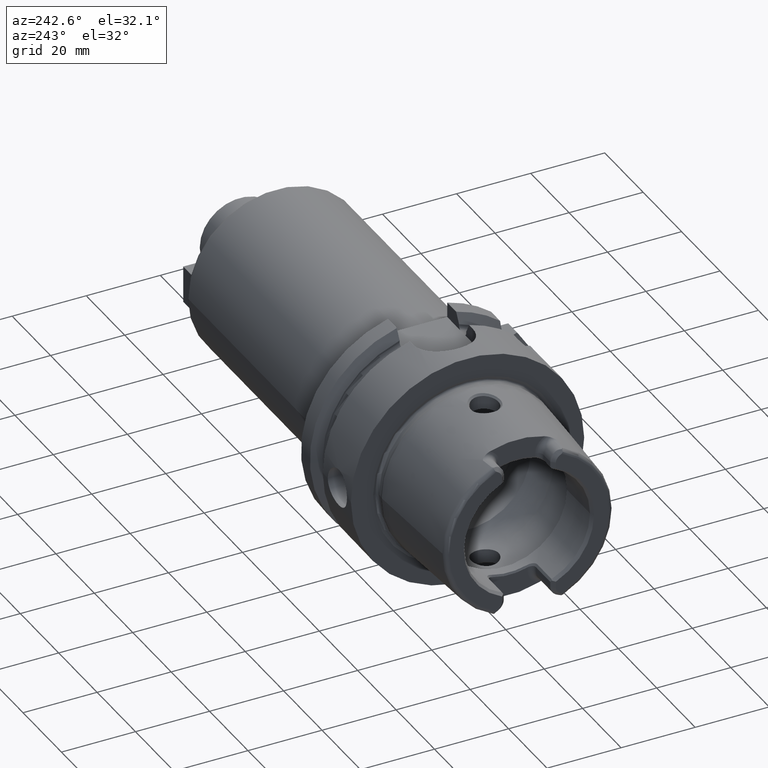
[diagram: clean part render]
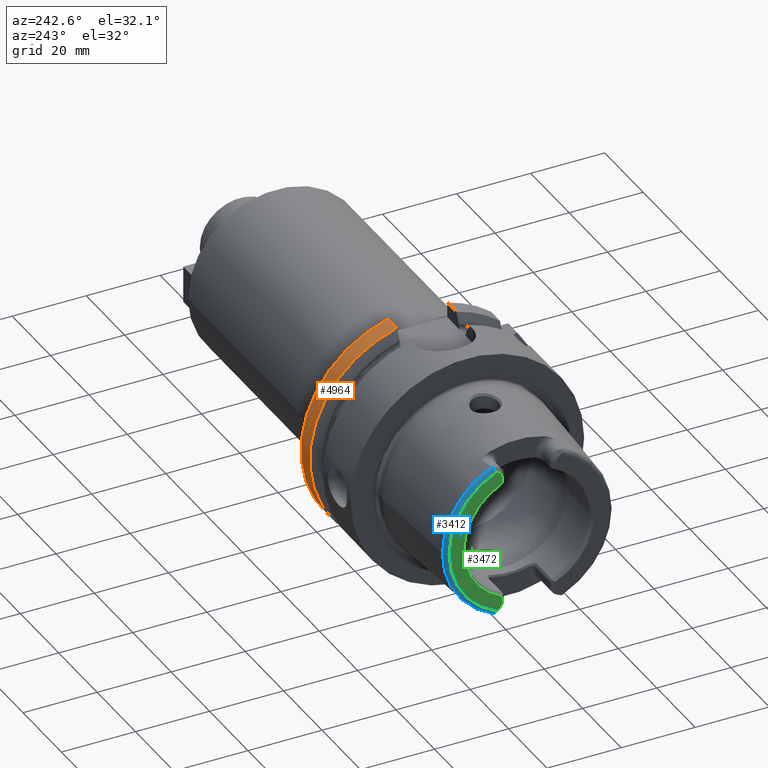
[diagram: same view with three faces highlighted in distinct colors, each labeled with its STEP entity id]
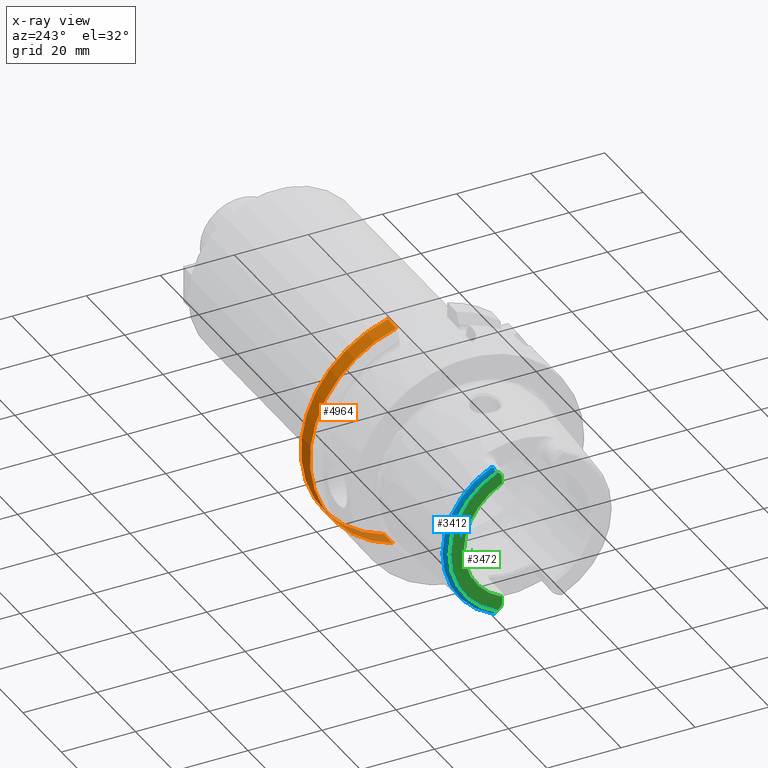
[diagram: x-ray of the same camera — body ghosted, the three highlighted faces saturated]
A machine part, auxiliary view with three faces highlighted in distinct colors.
The next image is the same camera in x-ray (body ghosted, the three faces saturated) — at least one of them is partly hidden behind the body in this view.
Their STEP definitions:

[orange] entity #4964 — the highlighted cylindrical surface (partial cylindrical patch) has radius 31.5 mm, axis along (1, 0, 0).
#1324=DIRECTION('',(-1.E0,0.E0,0.E0));
#1325=VECTOR('',#1324,4.622500925241E0);
#1326=CARTESIAN_POINT('',(2.6E1,9.0175E0,-3.018169467989E1));
#1327=LINE('',#1326,#1325);
#1557=DIRECTION('',(1.E0,0.E0,0.E0));
#1558=VECTOR('',#1557,4.622500925241E0);
#1559=CARTESIAN_POINT('',(2.137749907476E1,8.0175E0,3.046259499370E1));
#1560=LINE('',#1559,#1558);
#1565=CARTESIAN_POINT('',(2.6E1,0.E0,0.E0));
#1566=DIRECTION('',(1.E0,0.E0,0.E0));
#1567=DIRECTION('',(0.E0,2.862698412698E-1,-9.581490374568E-1));
#1568=AXIS2_PLACEMENT_3D('',#1565,#1566,#1567);
#1773=CARTESIAN_POINT('',(2.137749907476E1,9.0175E0,-3.018169467989E1));
#1780=CARTESIAN_POINT('',(2.137749907476E1,0.E0,0.E0));
#1781=DIRECTION('',(1.E0,0.E0,0.E0));
#1782=DIRECTION('',(0.E0,2.862698412698E-1,-9.581490374568E-1));
#1783=AXIS2_PLACEMENT_3D('',#1780,#1781,#1782);
#1790=CARTESIAN_POINT('',(2.137749907476E1,8.0175E0,3.046259499370E1));
#3124=VERTEX_POINT('',#1790);
#3153=VERTEX_POINT('',#1773);
#3155=CARTESIAN_POINT('',(2.6E1,9.0175E0,-3.018169467989E1));
#3156=CARTESIAN_POINT('',(2.6E1,8.0175E0,3.046259499370E1));
#3157=VERTEX_POINT('',#3155);
#3158=VERTEX_POINT('',#3156);
#4951=CARTESIAN_POINT('',(-3.49E1,0.E0,0.E0));
#4952=DIRECTION('',(1.E0,0.E0,0.E0));
#4953=DIRECTION('',(0.E0,-1.E0,0.E0));
#4954=AXIS2_PLACEMENT_3D('',#4951,#4952,#4953);
#4955=CYLINDRICAL_SURFACE('',#4954,3.15E1);
#4956=ORIENTED_EDGE('',*,*,#4665,.F.);
#4958=ORIENTED_EDGE('',*,*,#4957,.T.);
#4959=ORIENTED_EDGE('',*,*,#4922,.F.);
#4961=ORIENTED_EDGE('',*,*,#4960,.F.);
#4962=EDGE_LOOP('',(#4956,#4958,#4959,#4961));
#4963=FACE_OUTER_BOUND('',#4962,.F.);
#4964=ADVANCED_FACE('',(#4963),#4955,.T.);
#1569=CIRCLE('',#1568,3.15E1);
#1784=CIRCLE('',#1783,3.15E1);
#4665=EDGE_CURVE('',#3157,#3153,#1327,.T.);
#4922=EDGE_CURVE('',#3124,#3158,#1560,.T.);
#4957=EDGE_CURVE('',#3157,#3158,#1569,.T.);
#4960=EDGE_CURVE('',#3153,#3124,#1784,.T.);

[blue] entity #3412 — the highlighted toroidal blend (fillet) surface has major radius 21.5761 mm and minor (blend) radius 1.2 mm.
#155=CARTESIAN_POINT('',(-3.142329832300E1,9.147789680232E0,-2.066750973939E1));
#156=CARTESIAN_POINT('',(-3.146785463680E1,9.169327161481E0,-2.062835928028E1));
#157=CARTESIAN_POINT('',(-3.155487993536E1,9.203474960428E0,-2.054672249220E1));
#158=CARTESIAN_POINT('',(-3.168154941819E1,9.224273580731E0,-2.040902349895E1));
#159=CARTESIAN_POINT('',(-3.179638971845E1,9.206079697358E0,-2.025999286960E1));
#160=CARTESIAN_POINT('',(-3.189041365611E1,9.144200972137E0,-2.010730009138E1));
#161=CARTESIAN_POINT('',(-3.195659880516E1,9.041253650427E0,-1.996104010677E1));
#162=CARTESIAN_POINT('',(-3.199307626724E1,8.906850532423E0,-1.982972129493E1));
#163=CARTESIAN_POINT('',(-3.2E1,8.806197293584E0,-1.975573388857E1));
#164=CARTESIAN_POINT('',(-3.2E1,8.752868121732E0,-1.972091419616E1));
#166=CARTESIAN_POINT('',(-3.132832518959E1,9.27E0,-2.067E1));
#167=CARTESIAN_POINT('',(-3.134450759901E1,9.250608646179E0,-2.067E1));
#168=CARTESIAN_POINT('',(-3.137648814066E1,9.210816796832E0,-2.066962390252E1));
#169=CARTESIAN_POINT('',(-3.140779600340E1,9.169107457374E0,-2.066837887831E1));
#170=CARTESIAN_POINT('',(-3.142329832300E1,9.147789680232E0,-2.066750973939E1));
#172=CARTESIAN_POINT('',(-3.086004306431E1,9.562027931336E0,-2.067E1));
#173=CARTESIAN_POINT('',(-3.089908117982E1,9.557369764332E0,-2.067E1));
#174=CARTESIAN_POINT('',(-3.097780815735E1,9.539070199208E0,-2.067E1));
#175=CARTESIAN_POINT('',(-3.110050491135E1,9.479694699778E0,-2.067E1));
#176=CARTESIAN_POINT('',(-3.121836320761E1,9.390392333018E0,-2.067E1));
#177=CARTESIAN_POINT('',(-3.129230837722E1,9.313158885277E0,-2.067E1));
#178=CARTESIAN_POINT('',(-3.132832518959E1,9.27E0,-2.067E1));
#180=CARTESIAN_POINT('',(-3.086004306431E1,0.E0,0.E0));
#181=DIRECTION('',(-1.E0,0.E0,0.E0));
#182=DIRECTION('',(0.E0,1.E0,0.E0));
#183=AXIS2_PLACEMENT_3D('',#180,#181,#182);
#185=CARTESIAN_POINT('',(-3.086004306431E1,0.E0,0.E0));
#186=DIRECTION('',(1.E0,0.E0,0.E0));
#187=DIRECTION('',(0.E0,1.E0,0.E0));
#188=AXIS2_PLACEMENT_3D('',#185,#186,#187);
#190=CARTESIAN_POINT('',(-3.132832518959E1,9.27E0,2.067E1));
#191=CARTESIAN_POINT('',(-3.129225458868E1,9.313223339992E0,2.067E1));
#192=CARTESIAN_POINT('',(-3.121820569130E1,9.390519030682E0,2.067E1));
#193=CARTESIAN_POINT('',(-3.110062643974E1,9.479612323317E0,2.067E1));
#194=CARTESIAN_POINT('',(-3.097775607391E1,9.539101836846E0,2.067E1));
#195=CARTESIAN_POINT('',(-3.089906305674E1,9.557371926843E0,2.067E1));
#196=CARTESIAN_POINT('',(-3.086004306431E1,9.562027931336E0,2.067E1));
#198=CARTESIAN_POINT('',(-3.142329832300E1,9.147789680232E0,2.066750973939E1));
#199=CARTESIAN_POINT('',(-3.140773724452E1,9.169188258734E0,2.066838217263E1));
#200=CARTESIAN_POINT('',(-3.137636553203E1,9.210974971125E0,2.066962696388E1));
#201=CARTESIAN_POINT('',(-3.134444355624E1,9.250685388521E0,2.067E1));
#202=CARTESIAN_POINT('',(-3.132832518959E1,9.27E0,2.067E1));
#204=CARTESIAN_POINT('',(-3.2E1,8.752868121732E0,1.972091419616E1));
#205=CARTESIAN_POINT('',(-3.2E1,8.806191392107E0,1.975573003538E1));
#206=CARTESIAN_POINT('',(-3.199307728065E1,8.906838058357E0,1.982971194007E1));
#207=CARTESIAN_POINT('',(-3.195660462370E1,9.041248816786E0,1.996103000182E1));
#208=CARTESIAN_POINT('',(-3.189040233195E1,9.144202826203E0,2.010731482616E1));
#209=CARTESIAN_POINT('',(-3.179646342749E1,9.206041881340E0,2.025988014952E1));
#210=CARTESIAN_POINT('',(-3.168160529070E1,9.224292971301E0,2.040896943202E1));
#211=CARTESIAN_POINT('',(-3.155472601909E1,9.203436757989E0,2.054688136818E1));
#212=CARTESIAN_POINT('',(-3.146778482605E1,9.169293416595E0,2.062842062115E1));
#213=CARTESIAN_POINT('',(-3.142329832300E1,9.147789680232E0,2.066750973939E1));
#215=CARTESIAN_POINT('',(-3.2E1,0.E0,0.E0));
#216=DIRECTION('',(-1.E0,0.E0,0.E0));
#217=DIRECTION('',(0.E0,4.056746540583E-1,9.140175463604E-1));
#218=AXIS2_PLACEMENT_3D('',#215,#216,#217);
#2770=CARTESIAN_POINT('',(-3.086004306431E1,2.277457525750E1,0.E0));
#2771=VERTEX_POINT('',#2770);
#2810=VERTEX_POINT('',#190);
#2811=VERTEX_POINT('',#196);
#2843=CARTESIAN_POINT('',(-3.2E1,8.752868121732E0,1.972091419616E1));
#2844=VERTEX_POINT('',#2843);
#2845=VERTEX_POINT('',#213);
#2891=VERTEX_POINT('',#172);
#2892=VERTEX_POINT('',#178);
#2939=CARTESIAN_POINT('',(-3.2E1,8.752868121732E0,-1.972091419616E1));
#2940=VERTEX_POINT('',#2939);
#2941=VERTEX_POINT('',#155);
#3388=CARTESIAN_POINT('',(-3.08E1,0.E0,0.E0));
#3389=DIRECTION('',(1.E0,0.E0,0.E0));
#3390=DIRECTION('',(0.E0,-1.E0,0.E0));
#3391=AXIS2_PLACEMENT_3D('',#3388,#3389,#3390);
#3392=TOROIDAL_SURFACE('',#3391,2.157607835286E1,1.2E0);
#3394=ORIENTED_EDGE('',*,*,#3393,.F.);
#3396=ORIENTED_EDGE('',*,*,#3395,.F.);
#3398=ORIENTED_EDGE('',*,*,#3397,.F.);
#3400=ORIENTED_EDGE('',*,*,#3399,.F.);
#3401=ORIENTED_EDGE('',*,*,#3279,.T.);
#3403=ORIENTED_EDGE('',*,*,#3402,.F.);
#3405=ORIENTED_EDGE('',*,*,#3404,.F.);
#3407=ORIENTED_EDGE('',*,*,#3406,.F.);
#3409=ORIENTED_EDGE('',*,*,#3408,.T.);
#3410=EDGE_LOOP('',(#3394,#3396,#3398,#3400,#3401,#3403,#3405,#3407,#3409));
#3411=FACE_OUTER_BOUND('',#3410,.F.);
#3412=ADVANCED_FACE('',(#3411),#3392,.T.);
#165=B_SPLINE_CURVE_WITH_KNOTS('',3,(#155,#156,#157,#158,#159,#160,#161,#162,
#163,#164),.UNSPECIFIED.,.F.,.F.,(4,1,1,1,1,1,1,4),(0.E0,1.428571428571E-1,
2.857142857143E-1,4.285714285714E-1,5.714285714286E-1,7.142857142857E-1,
8.571428571429E-1,1.E0),.UNSPECIFIED.);
#171=B_SPLINE_CURVE_WITH_KNOTS('',3,(#166,#167,#168,#169,#170),.UNSPECIFIED.,
.F.,.F.,(4,1,4),(0.E0,5.E-1,1.E0),.UNSPECIFIED.);
#179=B_SPLINE_CURVE_WITH_KNOTS('',3,(#172,#173,#174,#175,#176,#177,#178),
.UNSPECIFIED.,.F.,.F.,(4,1,1,1,4),(0.E0,2.5E-1,5.E-1,7.5E-1,1.E0),
.UNSPECIFIED.);
#184=CIRCLE('',#183,2.277457525750E1);
#189=CIRCLE('',#188,2.277457525750E1);
#197=B_SPLINE_CURVE_WITH_KNOTS('',3,(#190,#191,#192,#193,#194,#195,#196),
.UNSPECIFIED.,.F.,.F.,(4,1,1,1,4),(0.E0,2.5E-1,5.E-1,7.5E-1,1.E0),
.UNSPECIFIED.);
#203=B_SPLINE_CURVE_WITH_KNOTS('',3,(#198,#199,#200,#201,#202),.UNSPECIFIED.,
.F.,.F.,(4,1,4),(0.E0,5.E-1,1.E0),.UNSPECIFIED.);
#214=B_SPLINE_CURVE_WITH_KNOTS('',3,(#204,#205,#206,#207,#208,#209,#210,#211,
#212,#213),.UNSPECIFIED.,.F.,.F.,(4,1,1,1,1,1,1,4),(0.E0,1.428571428571E-1,
2.857142857143E-1,4.285714285714E-1,5.714285714286E-1,7.142857142857E-1,
8.571428571429E-1,1.E0),.UNSPECIFIED.);
#219=CIRCLE('',#218,2.157607835286E1);
#3279=EDGE_CURVE('',#2771,#2811,#189,.T.);
#3393=EDGE_CURVE('',#2941,#2940,#165,.T.);
#3395=EDGE_CURVE('',#2892,#2941,#171,.T.);
#3397=EDGE_CURVE('',#2891,#2892,#179,.T.);
#3399=EDGE_CURVE('',#2771,#2891,#184,.T.);
#3402=EDGE_CURVE('',#2810,#2811,#197,.T.);
#3404=EDGE_CURVE('',#2845,#2810,#203,.T.);
#3406=EDGE_CURVE('',#2844,#2845,#214,.T.);
#3408=EDGE_CURVE('',#2844,#2940,#219,.T.);

[green] entity #3472 — the highlighted planar face has unit normal (1, 0, 0).
#215=CARTESIAN_POINT('',(-3.2E1,0.E0,0.E0));
#216=DIRECTION('',(-1.E0,0.E0,0.E0));
#217=DIRECTION('',(0.E0,4.056746540583E-1,9.140175463604E-1));
#218=AXIS2_PLACEMENT_3D('',#215,#216,#217);
#289=DIRECTION('',(0.E0,0.E0,1.E0));
#290=VECTOR('',#289,1.666552168805E0);
#291=CARTESIAN_POINT('',(-3.2E1,7.27E0,-1.767E1));
#292=LINE('',#291,#290);
#293=CARTESIAN_POINT('',(-3.2E1,9.27E0,-1.767E1));
#294=DIRECTION('',(1.E0,0.E0,0.E0));
#295=DIRECTION('',(0.E0,-1.E0,0.E0));
#296=AXIS2_PLACEMENT_3D('',#293,#294,#295);
#298=DIRECTION('',(0.E0,-8.373245684230E-1,5.467061067112E-1));
#299=VECTOR('',#298,6.882400885956E-1);
#300=CARTESIAN_POINT('',(-3.2E1,8.752868121732E0,-1.972091419616E1));
#301=LINE('',#300,#299);
#302=DIRECTION('',(0.E0,-8.373245684230E-1,-5.467061067112E-1));
#303=VECTOR('',#302,6.882400885957E-1);
#304=CARTESIAN_POINT('',(-3.2E1,8.752868121732E0,1.972091419616E1));
#305=LINE('',#304,#303);
#306=CARTESIAN_POINT('',(-3.2E1,9.27E0,1.767E1));
#307=DIRECTION('',(-1.E0,0.E0,0.E0));
#308=DIRECTION('',(0.E0,-1.E0,0.E0));
#309=AXIS2_PLACEMENT_3D('',#306,#307,#308);
#311=DIRECTION('',(0.E0,0.E0,1.E0));
#312=VECTOR('',#311,1.666552168805E0);
#313=CARTESIAN_POINT('',(-3.2E1,7.27E0,1.600344783120E1));
#314=LINE('',#313,#312);
#346=CARTESIAN_POINT('',(-3.2E1,0.E0,0.E0));
#347=DIRECTION('',(1.E0,0.E0,0.E0));
#348=DIRECTION('',(0.E0,4.136004510727E-1,-9.104584926686E-1));
#349=AXIS2_PLACEMENT_3D('',#346,#347,#348);
#2837=CARTESIAN_POINT('',(-3.2E1,7.27E0,1.600344783120E1));
#2838=CARTESIAN_POINT('',(-3.2E1,7.27E0,1.767E1));
#2839=VERTEX_POINT('',#2837);
#2840=VERTEX_POINT('',#2838);
#2841=CARTESIAN_POINT('',(-3.2E1,8.176587786578E0,1.934464913685E1));
#2842=VERTEX_POINT('',#2841);
#2843=CARTESIAN_POINT('',(-3.2E1,8.752868121732E0,1.972091419616E1));
#2844=VERTEX_POINT('',#2843);
#2933=CARTESIAN_POINT('',(-3.2E1,7.27E0,-1.767E1));
#2934=CARTESIAN_POINT('',(-3.2E1,7.27E0,-1.600344783120E1));
#2935=VERTEX_POINT('',#2933);
#2936=VERTEX_POINT('',#2934);
#2937=CARTESIAN_POINT('',(-3.2E1,8.176587786578E0,-1.934464913685E1));
#2938=VERTEX_POINT('',#2937);
#2939=CARTESIAN_POINT('',(-3.2E1,8.752868121732E0,-1.972091419616E1));
#2940=VERTEX_POINT('',#2939);
#3451=CARTESIAN_POINT('',(-3.2E1,0.E0,0.E0));
#3452=DIRECTION('',(1.E0,0.E0,0.E0));
#3453=DIRECTION('',(0.E0,-1.E0,0.E0));
#3454=AXIS2_PLACEMENT_3D('',#3451,#3452,#3453);
#3455=PLANE('',#3454);
#3457=ORIENTED_EDGE('',*,*,#3456,.F.);
#3459=ORIENTED_EDGE('',*,*,#3458,.T.);
#3460=ORIENTED_EDGE('',*,*,#3441,.F.);
#3461=ORIENTED_EDGE('',*,*,#3408,.F.);
#3463=ORIENTED_EDGE('',*,*,#3462,.T.);
#3465=ORIENTED_EDGE('',*,*,#3464,.F.);
#3467=ORIENTED_EDGE('',*,*,#3466,.F.);
#3469=ORIENTED_EDGE('',*,*,#3468,.F.);
#3470=EDGE_LOOP('',(#3457,#3459,#3460,#3461,#3463,#3465,#3467,#3469));
#3471=FACE_OUTER_BOUND('',#3470,.F.);
#3472=ADVANCED_FACE('',(#3471),#3455,.F.);
#219=CIRCLE('',#218,2.157607835286E1);
#297=CIRCLE('',#296,2.E0);
#310=CIRCLE('',#309,2.E0);
#350=CIRCLE('',#349,1.757735026919E1);
#3408=EDGE_CURVE('',#2844,#2940,#219,.T.);
#3441=EDGE_CURVE('',#2940,#2938,#301,.T.);
#3456=EDGE_CURVE('',#2935,#2936,#292,.T.);
#3458=EDGE_CURVE('',#2935,#2938,#297,.T.);
#3462=EDGE_CURVE('',#2844,#2842,#305,.T.);
#3464=EDGE_CURVE('',#2840,#2842,#310,.T.);
#3466=EDGE_CURVE('',#2839,#2840,#314,.T.);
#3468=EDGE_CURVE('',#2936,#2839,#350,.T.);